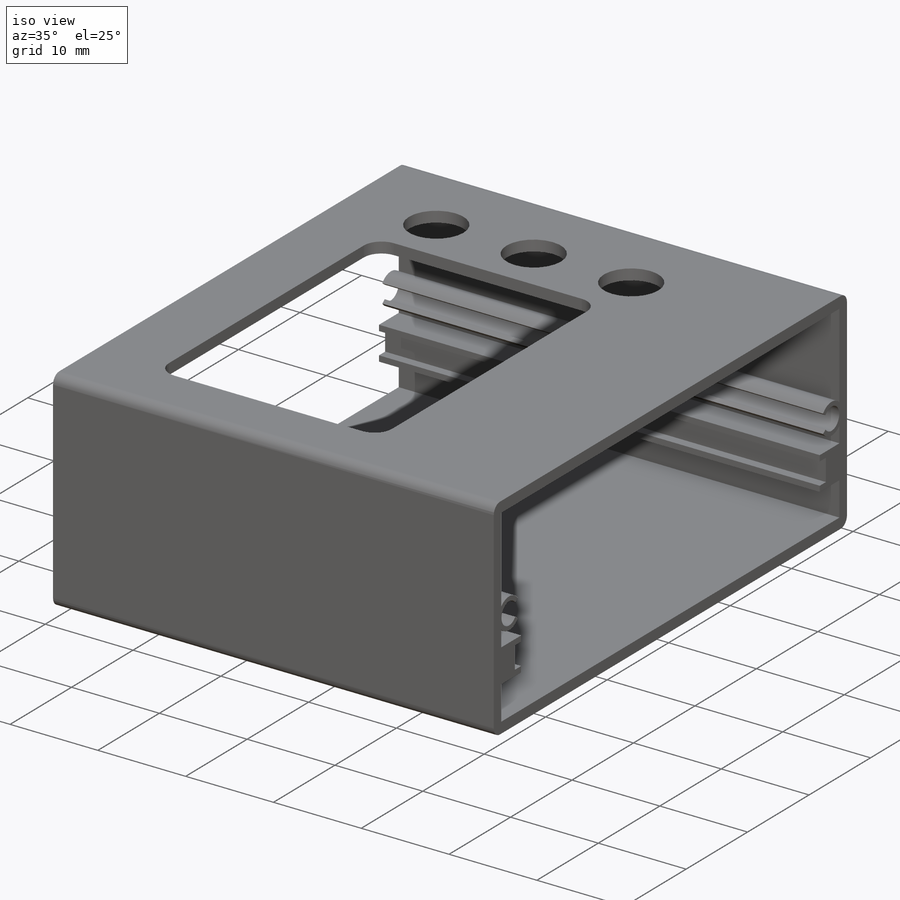
[diagram: iso view]
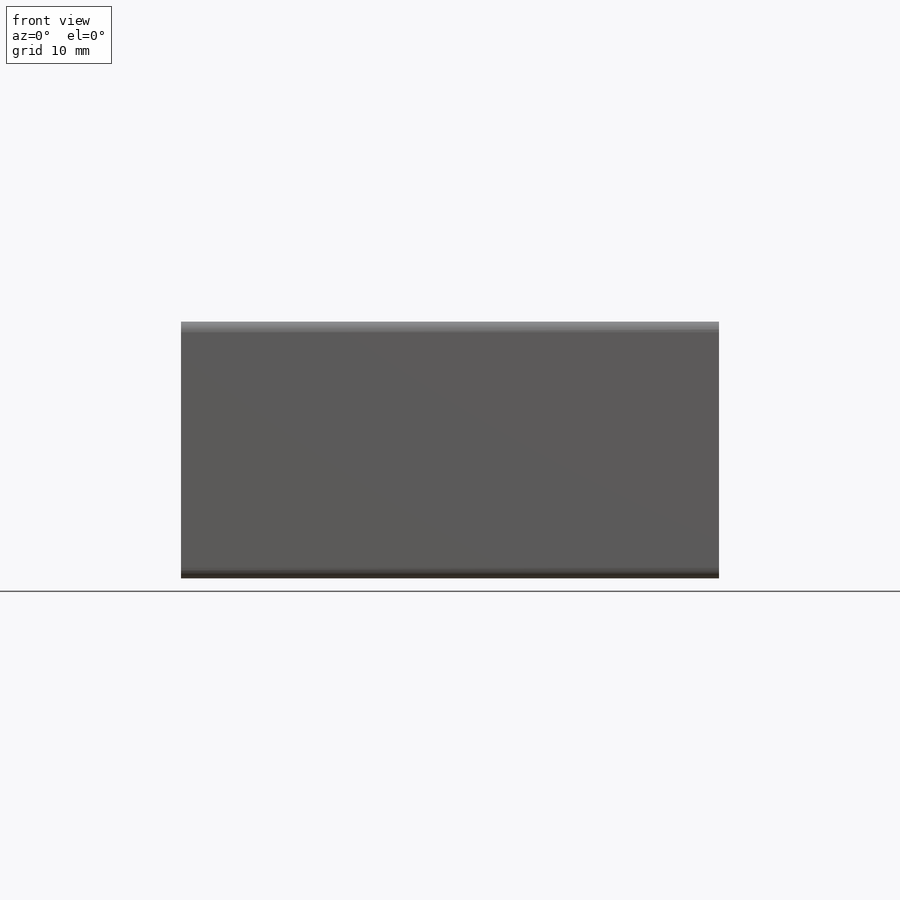
[diagram: front view]
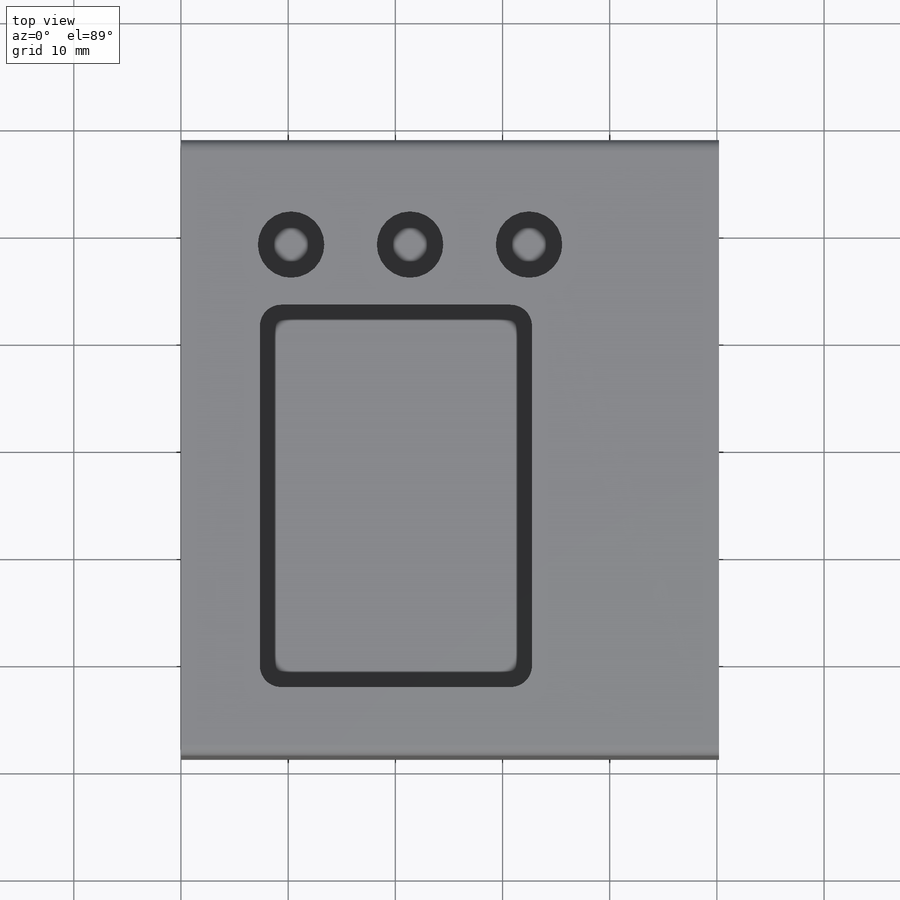
[diagram: top view]
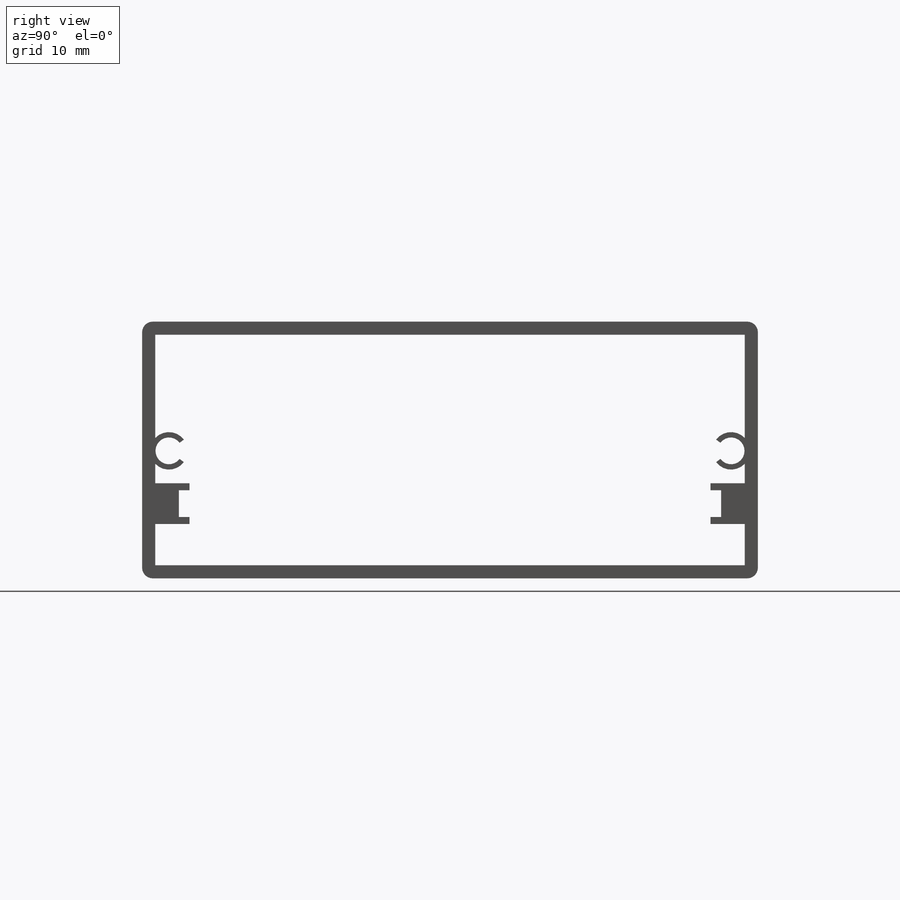
[diagram: right view]
SOLIDWORKS PART (.sldprt)
format: sldprt  version: not decoded by parser v0  size: 318,976 bytes
history: native  units: mm
features: sketch x3, cut_extrude x2, material x1, extrude x1, fillet x1 (+13 scaffold rows collapsed)
feature tree (21):
  scaffold x13  (default folders/planes/origin — collapsed)
  material  "Material <not specified>"
  sketch  "Sketch1"  dims[D9=3.5mm D1=55.0mm D2=21.5mm D4=3.85mm D5=3.8mm D6=3.2mm D7=2.5mm D8=1.0mm D10=2.5mm D11=11.9mm D12=1.0mm D3=1.23mm D13=0.5mm]
  extrude  "Boss-Extrude1"  Depth=50.2mm
  fillet  "Fillet1"  Radius=1mm
  sketch  "Sketch2"  dims[D1=0.1mm]
  cut_extrude  "Cut-Extrude1"  [1 undecoded]
  sketch  "Sketch3"  dims[D1=0.0mm D2=0.0mm D3=0.5mm]
  cut_extrude  "Cut-Extrude2"  [1 undecoded]
decode coverage: 5 of 7 modeling features carry decoded parameters
note: 2 parameter values undecoded
note: suppression state not decoded; provenance and decode notes live in map.json
